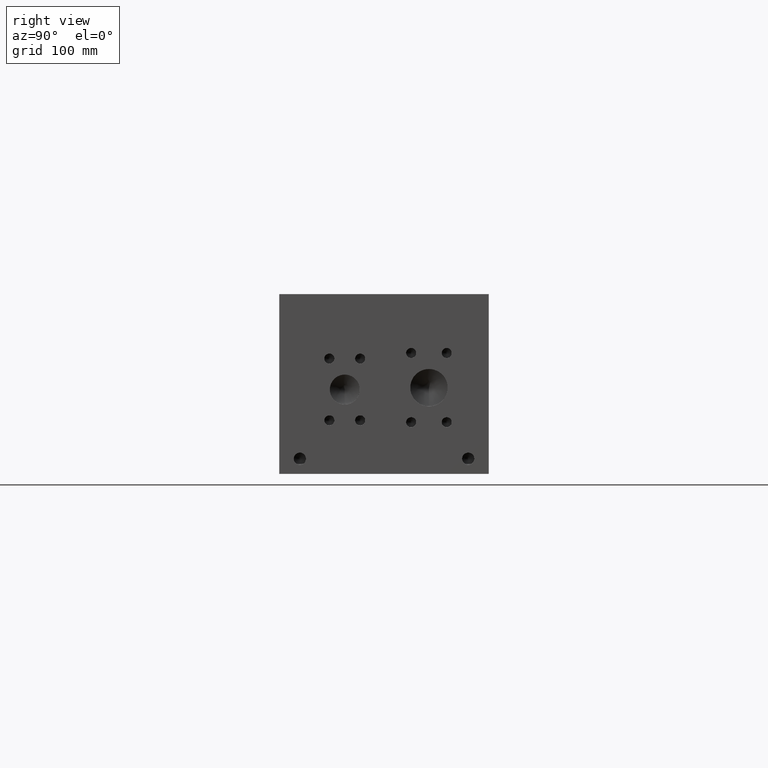
[diagram: clean part render]
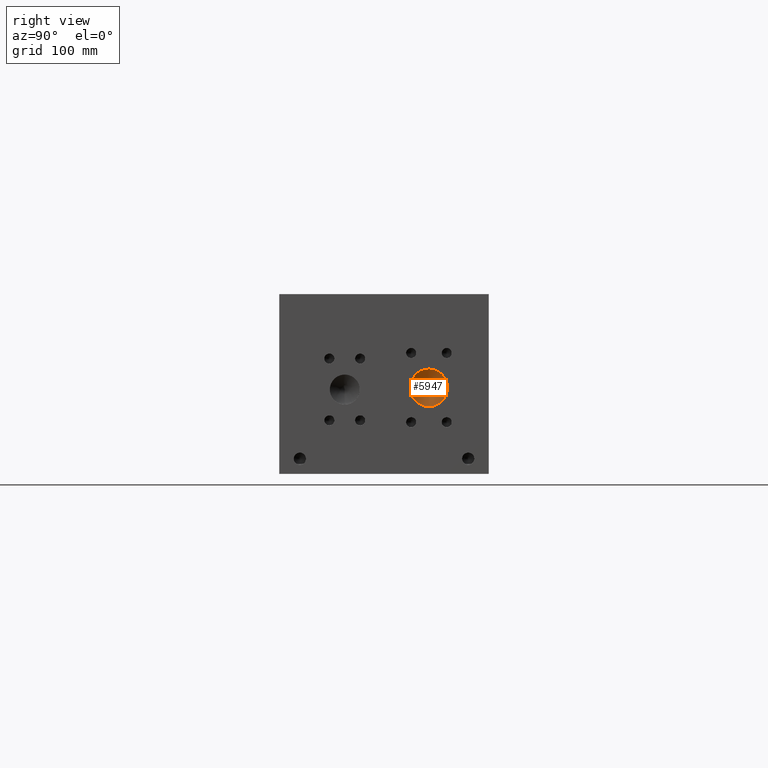
[diagram: same view with one face highlighted and labeled with its STEP entity id]
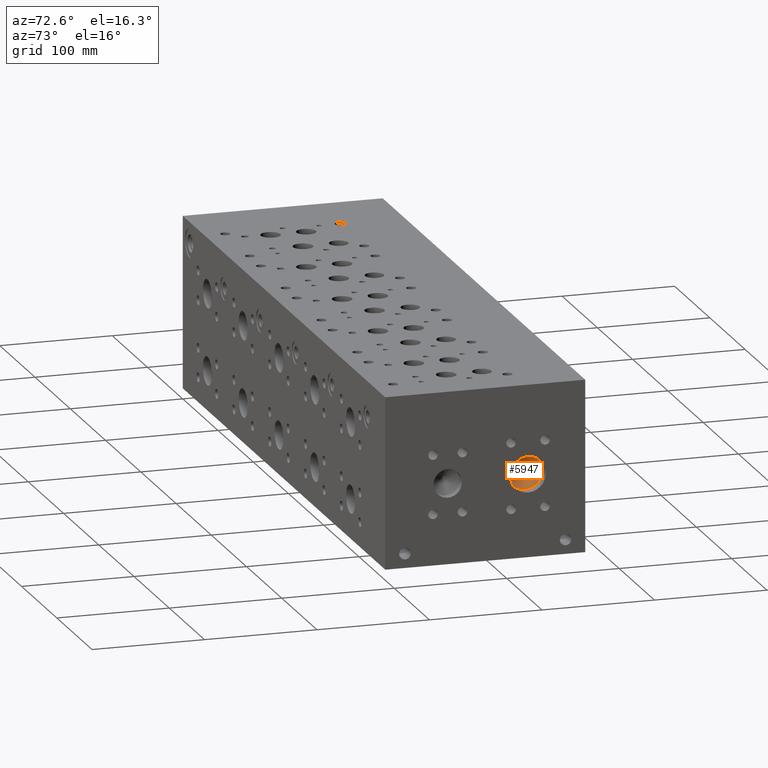
[diagram: same view with one face highlighted and labeled with its STEP entity id]
A machine part, right view. The second image highlights one B-rep face of the part: STEP entity #5947.
A second angle (auxiliary view) of the same face is appended — the face is thin or edge-on in the first view.
In plain terms, the highlighted conical surface has half-angle 60 deg.
Its self-contained STEP definition (entity closure, byte-faithful):
#5931=CARTESIAN_POINT('',(560.92684674999998,127.00000000000001,73.025000000000006));
#5932=DIRECTION('',(1.0,0.0,0.0));
#5933=DIRECTION('',(0.0,0.0,-1.0));
#5934=AXIS2_PLACEMENT_3D('',#5931,#5932,#5933);
#5935=CONICAL_SURFACE('',#5934,7.937500000000002,60.000000063301407);
#5936=CARTESIAN_POINT('',(565.50956450000001,127.00000000000001,57.150000000000006));
#5937=VERTEX_POINT('',#5936);
#5938=CARTESIAN_POINT('',(565.50956450000001,127.00000000000001,73.025000000000006));
#5939=DIRECTION('',(1.0,0.0,0.0));
#5940=DIRECTION('',(0.0,0.0,-1.0));
#5941=AXIS2_PLACEMENT_3D('',#5938,#5939,#5940);
#5942=CIRCLE('',#5941,15.875000000000004);
#5943=EDGE_CURVE('',#5937,#5937,#5942,.T.);
#5944=ORIENTED_EDGE('',*,*,#5943,.T.);
#5945=EDGE_LOOP('',(#5944));
#5946=FACE_OUTER_BOUND('',#5945,.T.);
#5947=ADVANCED_FACE('',(#5946),#5935,.F.);